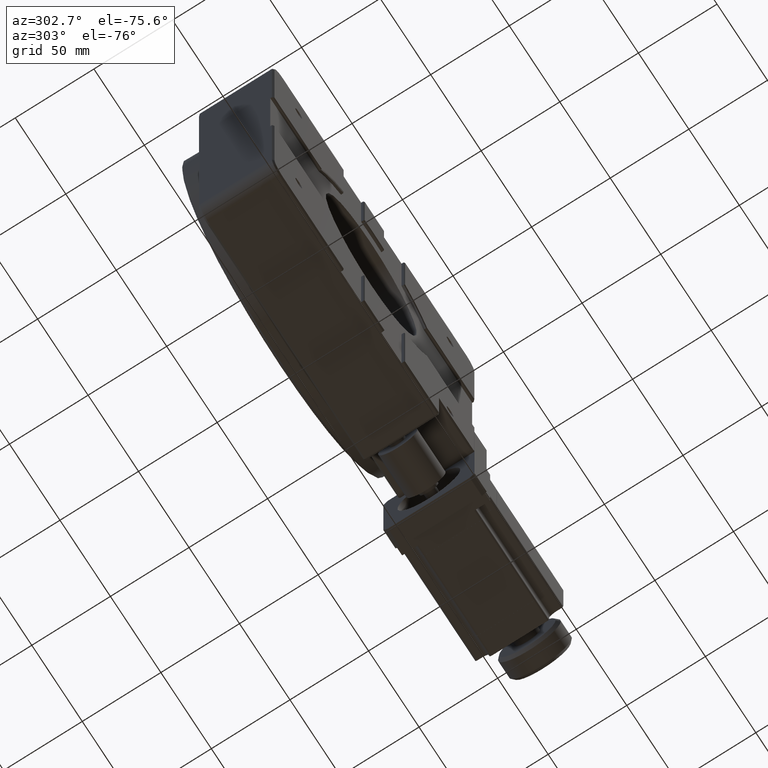
[diagram: clean part render]
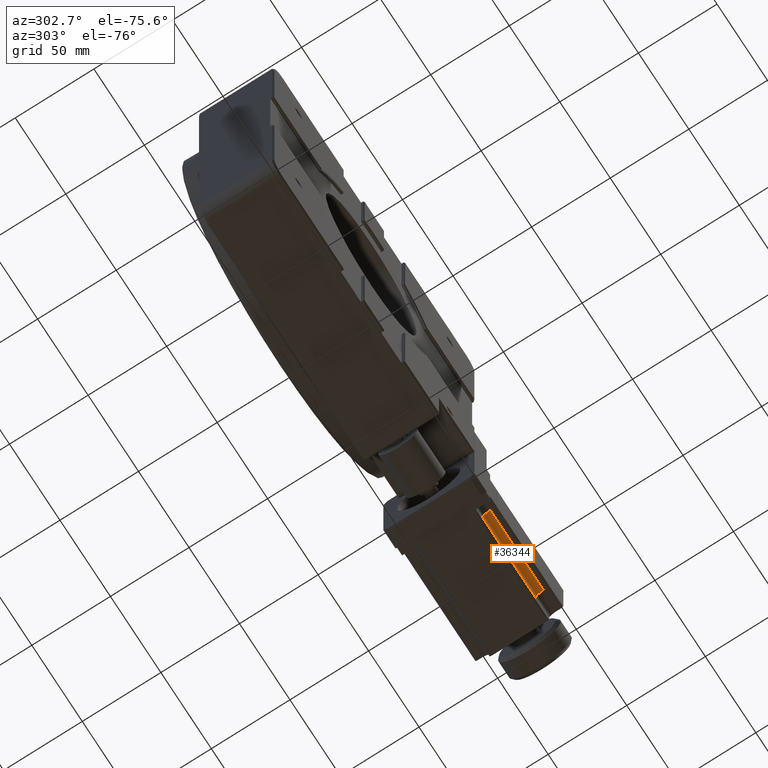
[diagram: same view with one face highlighted and labeled with its STEP entity id]
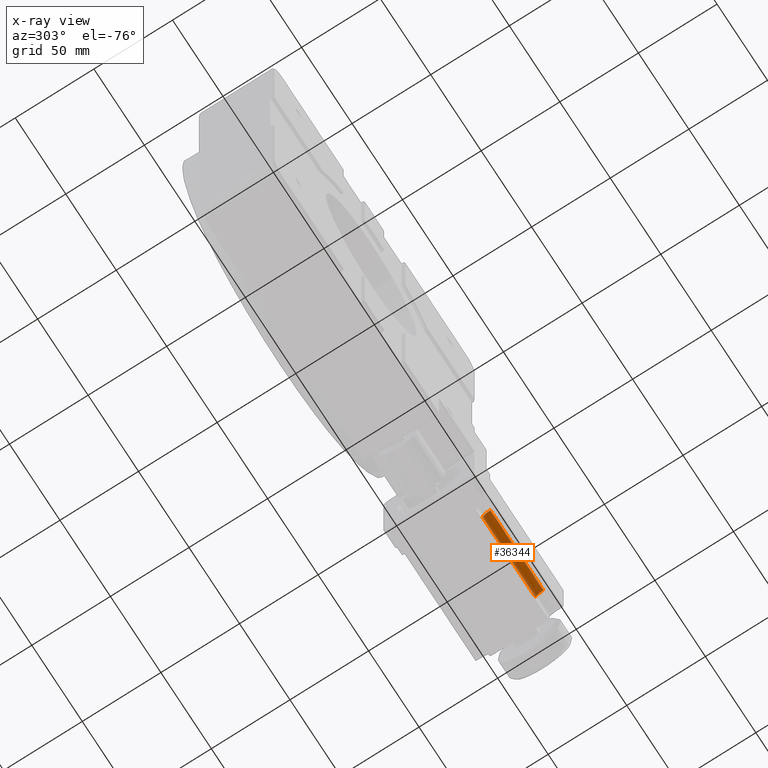
[diagram: x-ray of the same camera — body ghosted, the highlighted face saturated]
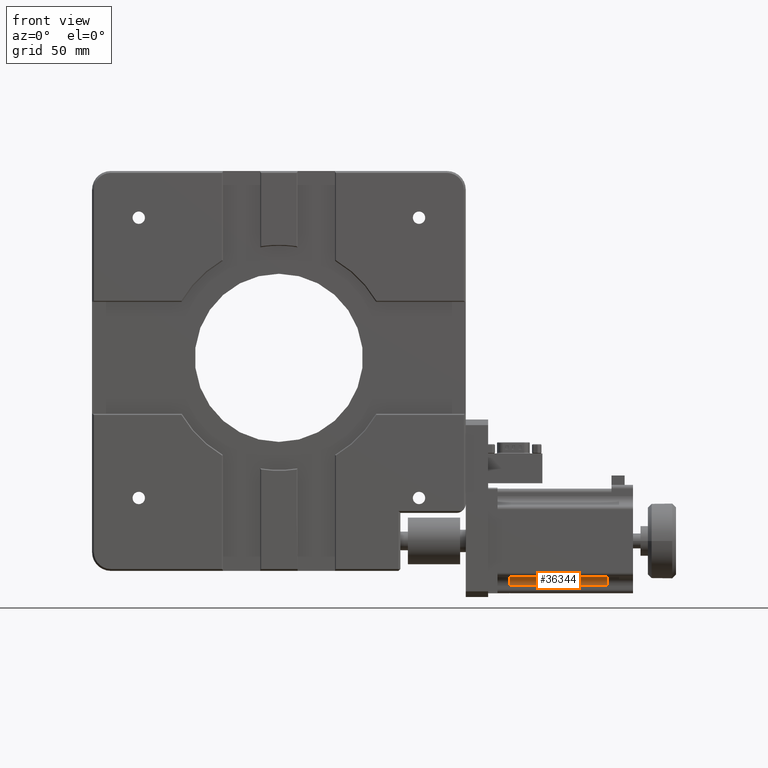
[diagram: same view with one face highlighted and labeled with its STEP entity id]
A machine part, auxiliary view. The second image highlights one B-rep face of the part: STEP entity #36344.
The next image is the same camera in x-ray: the body ghosted, the highlighted face saturated — about 0% of this face is hidden behind the body in this view.
A second angle (front view) of the same face is appended — the face is thin or edge-on in the first view.
In plain terms, the highlighted cylindrical surface (edge-blend (fillet) strip) has radius 5 mm, axis along (1, 0, 0).
Its self-contained STEP definition (entity closure, byte-faithful):
#365 = AXIS2_PLACEMENT_3D ( 'NONE', #12158, #23850, #27870 ) ;
#1035 = EDGE_CURVE ( 'NONE', #4332, #41329, #28827, .T. ) ;
#1123 = VERTEX_POINT ( 'NONE', #13425 ) ;
#2320 = AXIS2_PLACEMENT_3D ( 'NONE', #37599, #30314, #17716 ) ;
#2952 = EDGE_CURVE ( 'NONE', #43294, #4332, #50384, .T. ) ;
#3943 = AXIS2_PLACEMENT_3D ( 'NONE', #7888, #35458, #11559 ) ;
#4332 = VERTEX_POINT ( 'NONE', #14605 ) ;
#7786 = ORIENTED_EDGE ( 'NONE', *, *, #46163, .F. ) ;
#7888 = CARTESIAN_POINT ( 'NONE',  ( 223.5000000000000000, 5.499999999999967100, -221.9999999999999400 ) ) ;
#9141 = ORIENTED_EDGE ( 'NONE', *, *, #14149, .F. ) ;
#10133 = LINE ( 'NONE', #11282, #30126 ) ;
#11282 = CARTESIAN_POINT ( 'NONE',  ( 217.0000000000000000, 10.49999999999995700, -221.9999999999999400 ) ) ;
#11559 = DIRECTION ( 'NONE',  ( 0.0000000000000000000, 1.000000000000000000, 0.0000000000000000000 ) ) ;
#12158 = CARTESIAN_POINT ( 'NONE',  ( 217.0000000000000000, 5.499999999999960000, -221.9999999999999400 ) ) ;
#12263 = ORIENTED_EDGE ( 'NONE', *, *, #1035, .T. ) ;
#12496 = ORIENTED_EDGE ( 'NONE', *, *, #2952, .T. ) ;
#13425 = CARTESIAN_POINT ( 'NONE',  ( 223.5000000000000000, 10.49999999999996400, -221.9999999999999400 ) ) ;
#14149 = EDGE_CURVE ( 'NONE', #1123, #41329, #23412, .T. ) ;
#14605 = CARTESIAN_POINT ( 'NONE',  ( 276.0000000000000000, 5.500000000000005300, -216.9999999999998900 ) ) ;
#17716 = DIRECTION ( 'NONE',  ( 0.0000000000000000000, 1.000000000000000000, 0.0000000000000000000 ) ) ;
#18170 = VECTOR ( 'NONE', #36624, 1000.000000000000000 ) ;
#19247 = CYLINDRICAL_SURFACE ( 'NONE', #365, 4.999999999999997300 ) ;
#23412 = CIRCLE ( 'NONE', #3943, 4.999999999999997300 ) ;
#23850 = DIRECTION ( 'NONE',  ( 1.000000000000000000, 9.381252327465557100E-016, 6.943570314702293000E-016 ) ) ;
#27078 = CARTESIAN_POINT ( 'NONE',  ( 223.5000000000000000, 5.499999999999956500, -216.9999999999999400 ) ) ;
#27666 = DIRECTION ( 'NONE',  ( -1.000000000000000000, -9.381252327465557100E-016, -6.943570314702293000E-016 ) ) ;
#27870 = DIRECTION ( 'NONE',  ( 0.0000000000000000000, 1.000000000000000000, 0.0000000000000000000 ) ) ;
#27941 = CARTESIAN_POINT ( 'NONE',  ( 217.0000000000000000, 5.499999999999938700, -216.9999999999999400 ) ) ;
#28827 = LINE ( 'NONE', #27941, #18170 ) ;
#30126 = VECTOR ( 'NONE', #27666, 1000.000000000000000 ) ;
#30314 = DIRECTION ( 'NONE',  ( 1.000000000000000000, 9.381252327465557100E-016, 6.943570314702293000E-016 ) ) ;
#34296 = FACE_OUTER_BOUND ( 'NONE', #48056, .T. ) ;
#35458 = DIRECTION ( 'NONE',  ( 1.000000000000000000, 9.381252327465557100E-016, 6.943570314702293000E-016 ) ) ;
#36344 = ADVANCED_FACE ( 'NONE', ( #34296 ), #19247, .F. ) ;
#36624 = DIRECTION ( 'NONE',  ( -1.000000000000000000, -9.436895709313832600E-016, -6.943570314702293000E-016 ) ) ;
#37599 = CARTESIAN_POINT ( 'NONE',  ( 276.0000000000000000, 5.500000000000015100, -221.9999999999998900 ) ) ;
#37646 = CARTESIAN_POINT ( 'NONE',  ( 276.0000000000000000, 10.50000000000001200, -221.9999999999998900 ) ) ;
#41329 = VERTEX_POINT ( 'NONE', #27078 ) ;
#43294 = VERTEX_POINT ( 'NONE', #37646 ) ;
#46163 = EDGE_CURVE ( 'NONE', #43294, #1123, #10133, .T. ) ;
#48056 = EDGE_LOOP ( 'NONE', ( #12496, #12263, #9141, #7786 ) ) ;
#50384 = CIRCLE ( 'NONE', #2320, 4.999999999999997300 ) ;